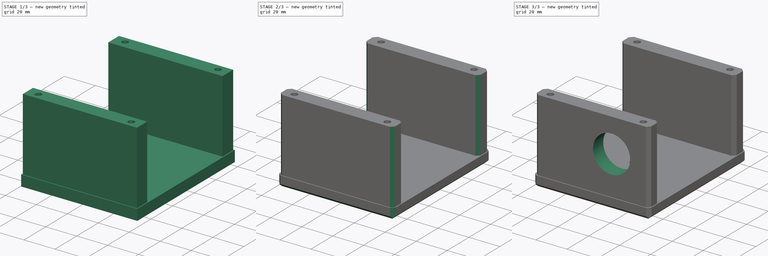
[diagram: build sequence overview — one tinted view per stage of 3, left to right]
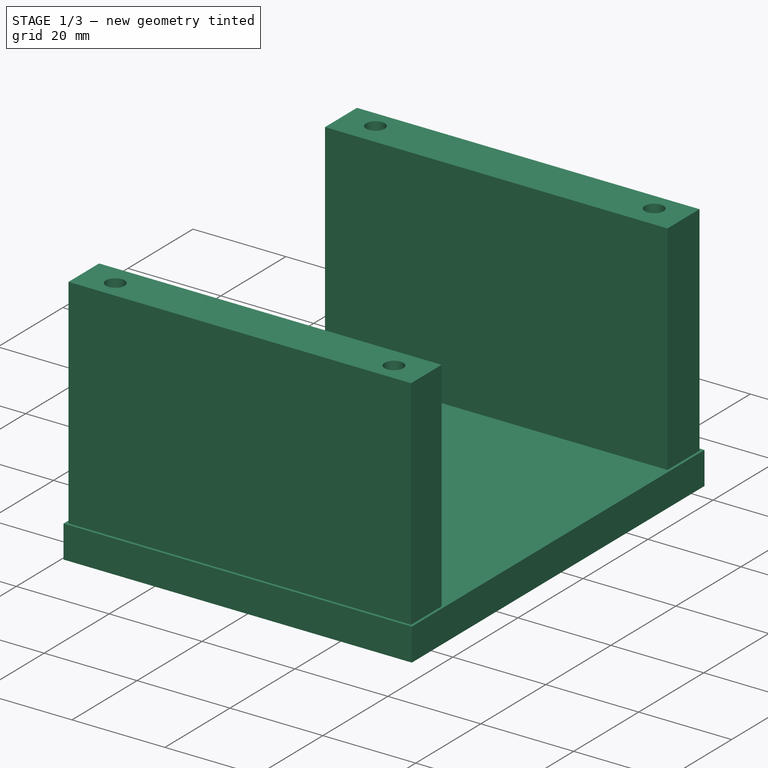
[diagram: stage 1 of 3 — iso view after this stage's code; geometry added in this stage tinted green]
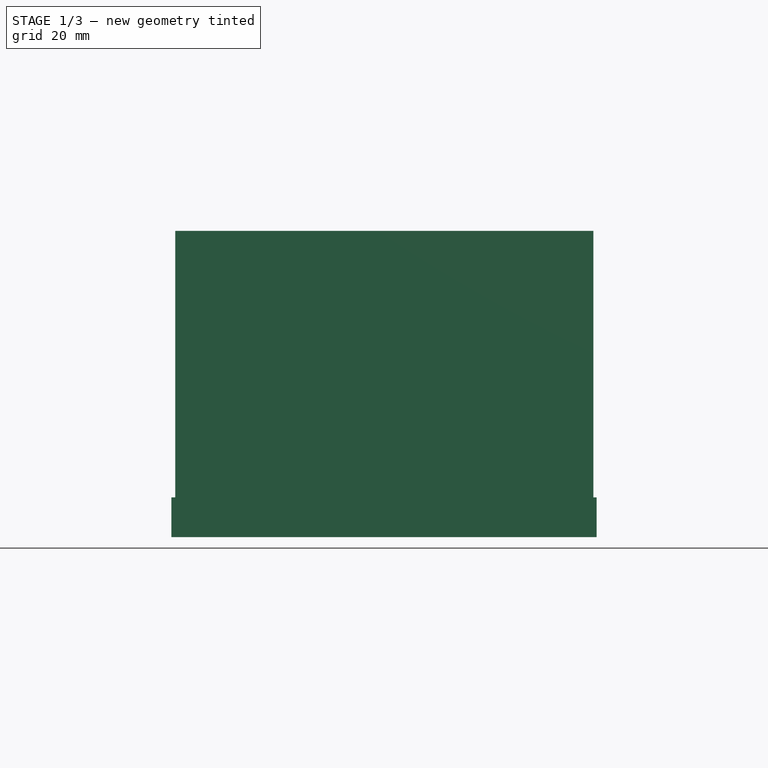
[diagram: stage 1 of 3 — front view after this stage's code; geometry added in this stage tinted green]
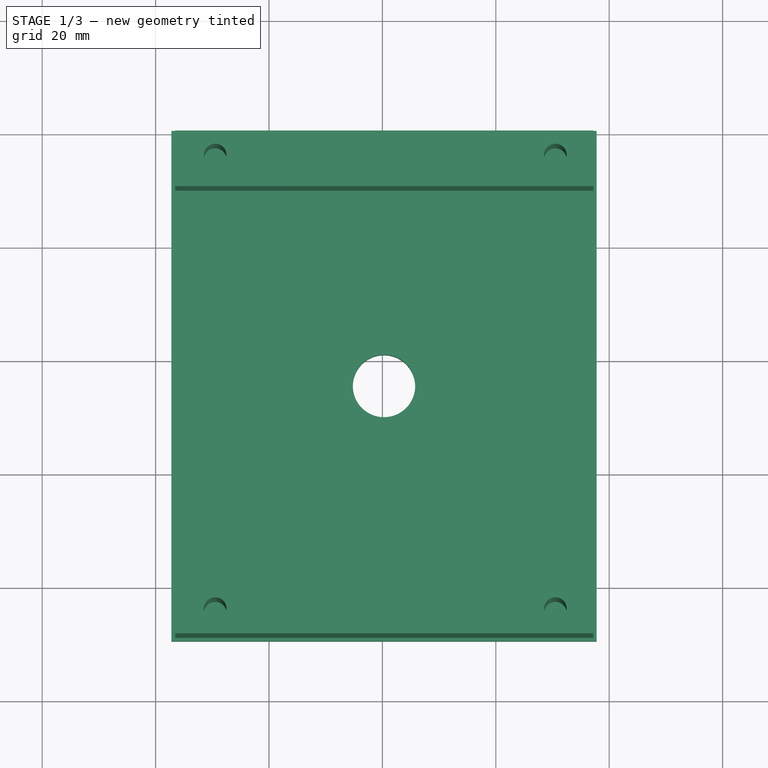
[diagram: stage 1 of 3 — top view after this stage's code; geometry added in this stage tinted green]
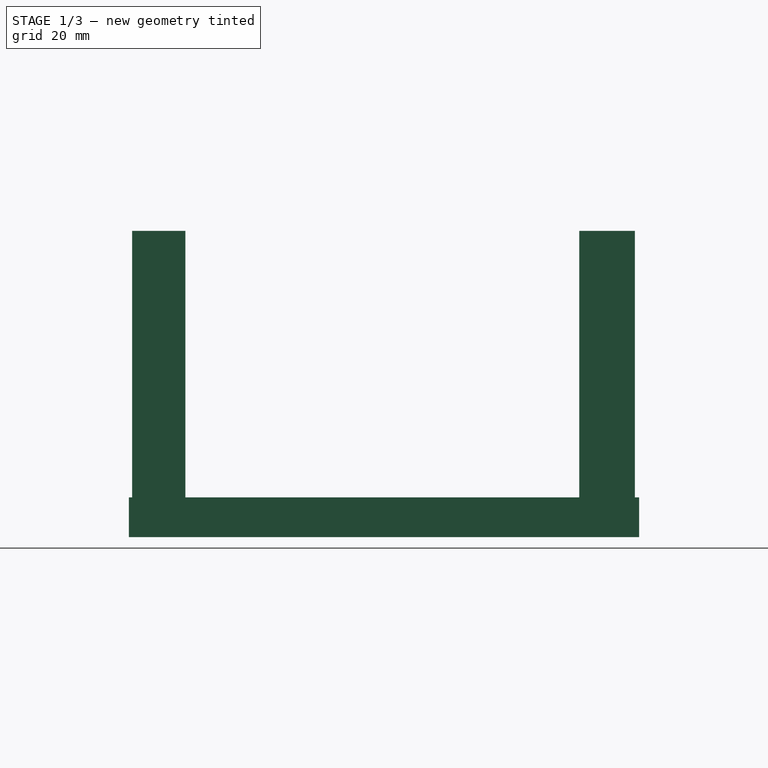
[diagram: stage 1 of 3 — right view after this stage's code; geometry added in this stage tinted green]
FCSTD DOCUMENT  (FreeCAD 0.16R6703 (Git))
Label: CameraPlatform
License: All rights reserved
LicenseURL: http://en.wikipedia.org/wiki/All_rights_reserved
objects: Sketcher::SketchObject×3, PartDesign::Pad×2, PartDesign::Chamfer×2, PartDesign::Pocket×2, Part::Part2DObjectPython×1
note: 14 computed .brp shape members not serialized (recipe doc carries the construction recipe); baked Part::Feature solids carry a one-line shape summary decoded from their .brp

FEATURE [Sketcher::SketchObject] Sketch
  sketch-geometry (7):
    g0: LineSegment StartX=-37.2199 StartY=40.5409 StartZ=0 EndX=37.7801 EndY=40.5409 EndZ=0
    g1: LineSegment StartX=37.7801 StartY=40.5409 StartZ=0 EndX=37.7801 EndY=-49.4591 EndZ=0
    g2: LineSegment StartX=37.7801 StartY=-49.4591 StartZ=0 EndX=-37.2199 EndY=-49.4591 EndZ=0
    g3: LineSegment StartX=-37.2199 StartY=-49.4591 StartZ=0 EndX=-37.2199 EndY=40.5409 EndZ=0
    g4: LineSegment [constr] StartX=-37.2199 StartY=-4.45905 StartZ=0 EndX=0.280064 EndY=-4.45905 EndZ=0
    g5: LineSegment [constr] StartX=0.280064 StartY=40.5409 StartZ=0 EndX=0.280064 EndY=-4.45905 EndZ=0
    g6: Circle CenterX=0.280064 CenterY=-4.45905 CenterZ=0 NormalX=0 NormalY=0 NormalZ=1 Radius=5.5
  constraints (19):
    c: Coincident(g0,g1)
    c: Coincident(g1,g2)
    c: Coincident(g2,g3)
    c: Coincident(g3,g0)
    c: Horizontal(g0)
    c: Horizontal(g2)
    c: Vertical(g1)
    c: Vertical(g3)
    c: DistanceX(g2,g2) = 75
    c: DistanceY(g1,g1) = 90
    c: PointOnObject(g4,g3)
    c: Horizontal(g4)
    c: PointOnObject(g5,g0)
    c: Coincident(g5,g4)
    c: Vertical(g5)
    c: Symmetric(g1,g2,g5)
    c: Symmetric(g0,g1,g4)
    c: Coincident(g6,g4)
    c: Radius(g6) = 5.5
FEATURE [PartDesign::Pad] Pad
  Length = 7
  Length2 = 100
  Sketch = -> Sketch
  Type = 0
FEATURE [Sketcher::SketchObject] Sketch001
  Placement = pos=(0,0,7) rot=(0,0,1;0rad)
  Support = -> Pad [Face7]
  sketch-geometry (22):
    g0: LineSegment [constr] StartX=-29.49 StartY=35.4493 StartZ=0 EndX=30.51 EndY=35.4493 EndZ=0
    g1: LineSegment [constr] StartX=30.51 StartY=35.4493 StartZ=0 EndX=30.51 EndY=-44.5507 EndZ=0
    g2: LineSegment [constr] StartX=30.51 StartY=-44.5507 StartZ=0 EndX=-29.49 EndY=-44.5507 EndZ=0
    g3: LineSegment [constr] StartX=-29.49 StartY=-44.5507 StartZ=0 EndX=-29.49 EndY=35.4493 EndZ=0
    g4: LineSegment StartX=-36.5258 StartY=39.788 StartZ=0 EndX=37.2146 EndY=39.788 EndZ=0
    g5: LineSegment StartX=37.2146 StartY=-48.8894 StartZ=0 EndX=-36.5258 EndY=-48.8894 EndZ=0
    g6: LineSegment [constr] StartX=-7.5151 StartY=39.788 StartZ=0 EndX=-7.5151 EndY=35.4493 EndZ=0
    g7: LineSegment [constr] StartX=3.29931 StartY=-44.5507 StartZ=0 EndX=3.29931 EndY=-48.8894 EndZ=0
    g8: LineSegment [constr] StartX=30.51 StartY=10 StartZ=0 EndX=37.5457 EndY=10 EndZ=0
    g9: LineSegment StartX=-36.5258 StartY=-39.5001 StartZ=0 EndX=37.2146 EndY=-39.5001 EndZ=0
    g10: LineSegment StartX=37.2146 StartY=39.788 StartZ=0 EndX=37.2146 EndY=29.9687 EndZ=0
    g11: LineSegment [constr] StartX=37.2146 StartY=29.9687 StartZ=0 EndX=37.2146 EndY=-39.5001 EndZ=0
    g12: LineSegment StartX=37.2146 StartY=-39.5001 StartZ=0 EndX=37.2146 EndY=-48.8894 EndZ=0
    g13: LineSegment StartX=-36.5258 StartY=39.788 StartZ=0 EndX=-36.5258 EndY=29.9687 EndZ=0
    g14: LineSegment [constr] StartX=-36.5258 StartY=29.9687 StartZ=0 EndX=-36.5258 EndY=-39.5001 EndZ=0
    g15: LineSegment StartX=-36.5258 StartY=-39.5001 StartZ=0 EndX=-36.5258 EndY=-48.8894 EndZ=0
    g16: LineSegment StartX=-36.5258 StartY=29.9687 StartZ=0 EndX=37.2146 EndY=29.9687 EndZ=0
    g17: Circle CenterX=-29.49 CenterY=35.4493 CenterZ=0 NormalX=0 NormalY=0 NormalZ=1 Radius=2
    g18: Circle CenterX=30.51 CenterY=35.4493 CenterZ=0 NormalX=0 NormalY=0 NormalZ=1 Radius=2
    g19: Circle CenterX=-29.49 CenterY=-44.5507 CenterZ=0 NormalX=0 NormalY=0 NormalZ=1 Radius=2
    g20: Circle CenterX=30.51 CenterY=-44.5507 CenterZ=0 NormalX=0 NormalY=0 NormalZ=1 Radius=2
    g21: LineSegment [constr] StartX=-36.5258 StartY=10.3446 StartZ=0 EndX=-29.49 EndY=10.3446 EndZ=0
  constraints (53):
    c: Coincident(g0,g1)
    c: Coincident(g1,g2)
    c: Coincident(g2,g3)
    c: Coincident(g3,g0)
    c: Horizontal(g0)
    c: Horizontal(g2)
    c: Vertical(g1)
    c: Vertical(g3)
    c: DistanceX(g0,g0) = 60
    c: DistanceY(g1,g1) = 80
    c: Horizontal(g4)
    c: Horizontal(g5)
    c: PointOnObject(g6,g4)
    c: PointOnObject(g6,g0)
    c: Vertical(g6)
    c: PointOnObject(g7,g2)
    c: PointOnObject(g7,g5)
    c: Vertical(g7)
    c: Equal(g6,g7)
    c: PointOnObject(g8,g1)
    c: Horizontal(g8)
    c: Horizontal(g9)
    c: Coincident(g10,g4)
    c: Vertical(g10)
    c: Coincident(g11,g10)
    c: Coincident(g11,g9)
    c: Vertical(g11)
    c: Coincident(g12,g9)
    c: Coincident(g12,g5)
    c: Vertical(g12)
    c: Coincident(g13,g4)
    c: Vertical(g13)
    c: Coincident(g14,g13)
    c: Coincident(g14,g9)
    c: Vertical(g14)
    c: Coincident(g15,g9)
    c: Coincident(g15,g5)
    c: Vertical(g15)
    c: Coincident(g16,g13)
    c: Coincident(g16,g10)
    c: Horizontal(g16)
    c: Coincident(g17,g0)
    c: Coincident(g18,g0)
    c: Coincident(g19,g2)
    c: Coincident(g20,g1)
    c: Equal(g19,g20)
    c: Equal(g20,g18)
    c: Equal(g18,g17)
    c: Radius(g19) = 2
    c: PointOnObject(g21,g14)
    c: PointOnObject(g21,g3)
    c: Horizontal(g21)
    c: Equal(g8,g21)
FEATURE [PartDesign::Pad] Pad001
  Length = 47
  Length2 = 100
  Sketch = -> Sketch001
  Type = 0
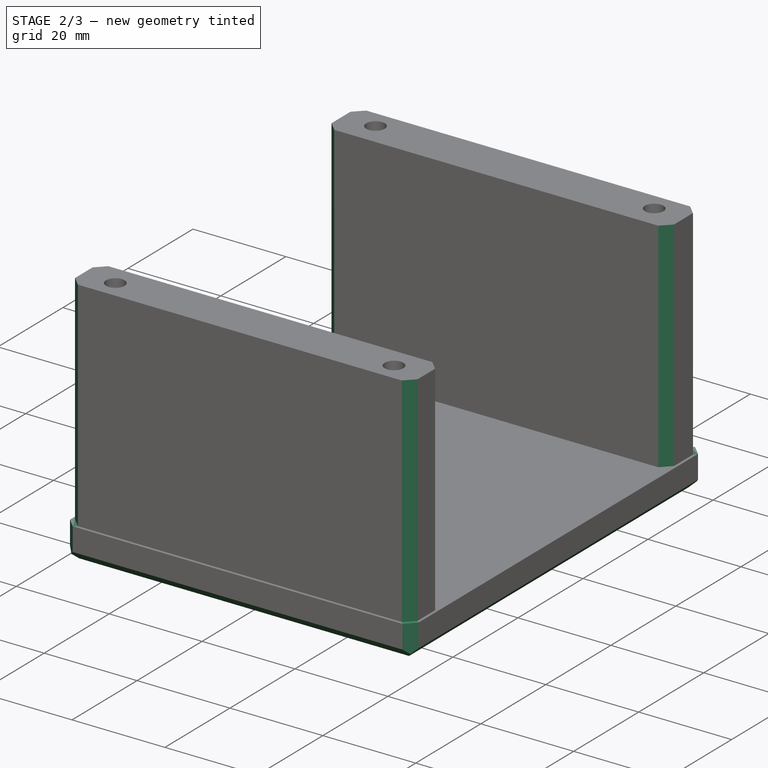
[diagram: stage 2 of 3 — iso view after this stage's code; geometry added in this stage tinted green]
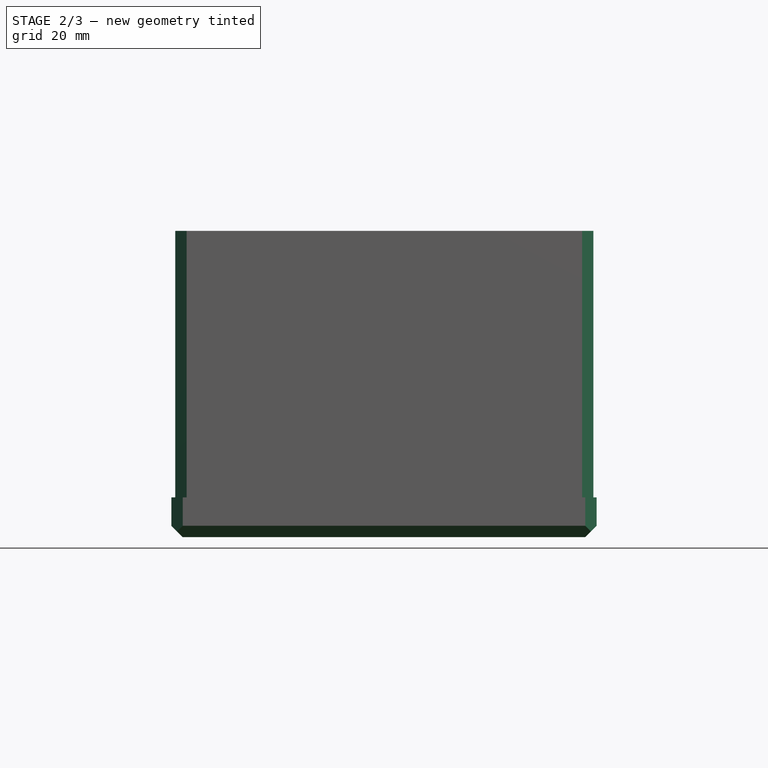
[diagram: stage 2 of 3 — front view after this stage's code; geometry added in this stage tinted green]
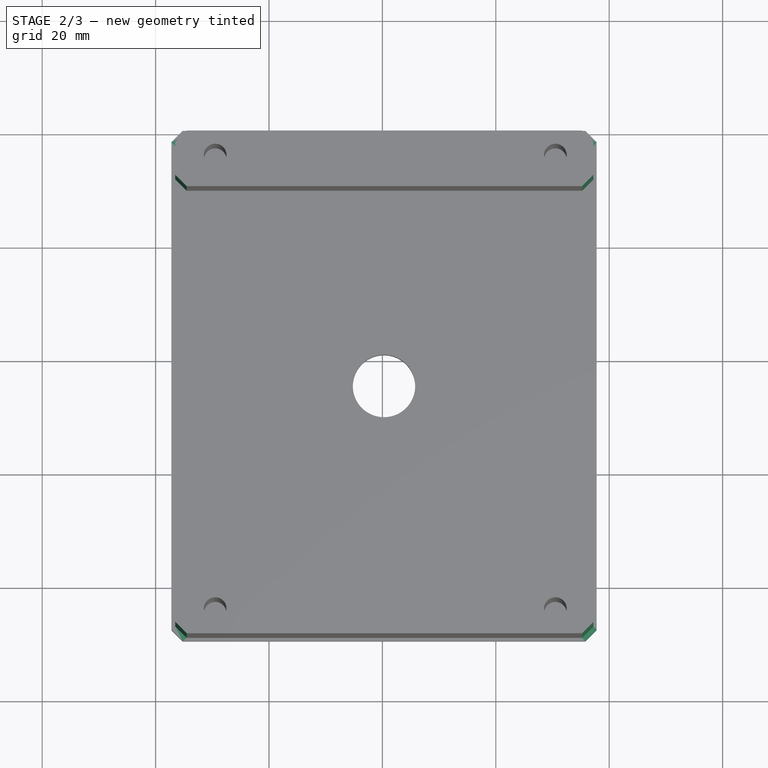
[diagram: stage 2 of 3 — top view after this stage's code; geometry added in this stage tinted green]
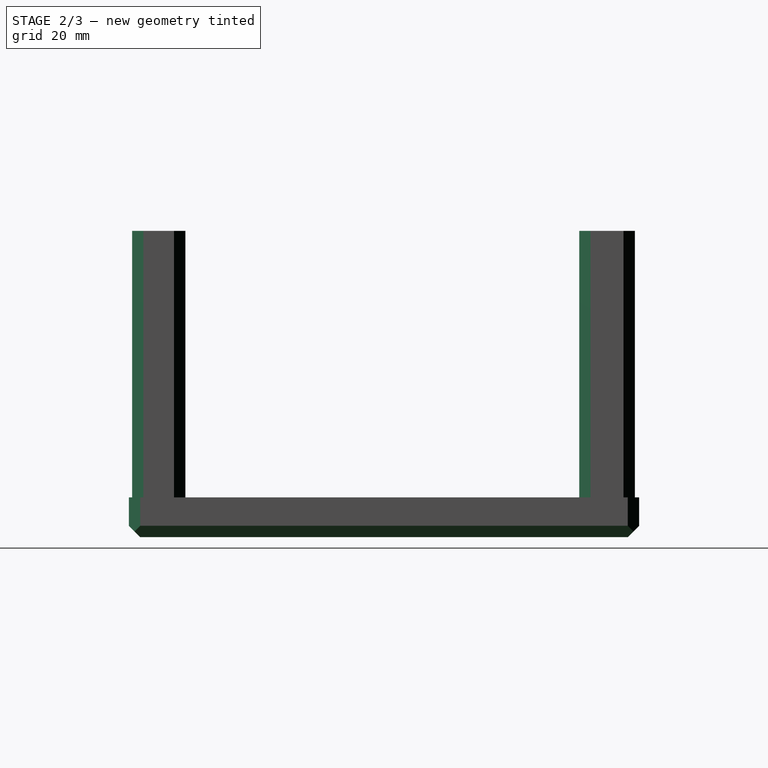
[diagram: stage 2 of 3 — right view after this stage's code; geometry added in this stage tinted green]
FEATURE [PartDesign::Chamfer] Chamfer
  Base = -> Pad001 [Edge9,Edge3,Edge6,Edge11]
  Size = 2
FEATURE [PartDesign::Chamfer] Chamfer001
  Base = -> Chamfer [Edge40,Edge44,Edge42,Edge31,Edge33,Edge36,Edge1,Edge4,Edge5,Edge35,Edge45,Edge23]
  Size = 2
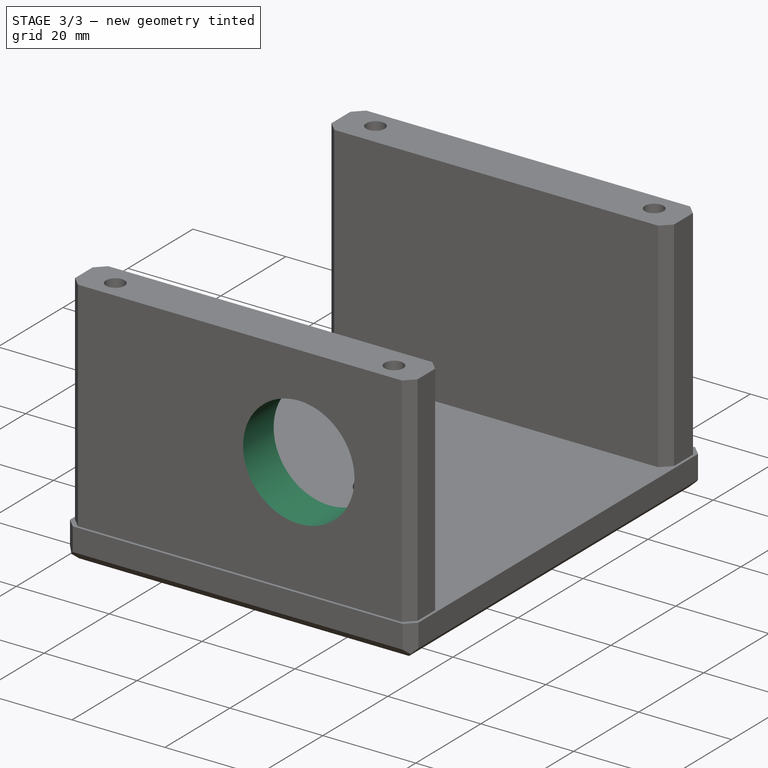
[diagram: stage 3 of 3 — iso view after this stage's code; geometry added in this stage tinted green]
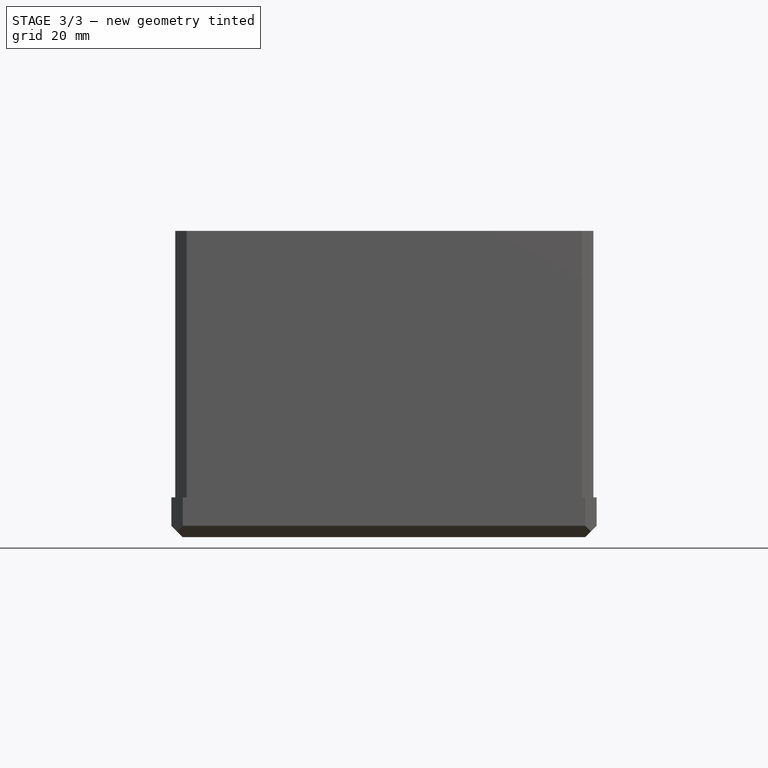
[diagram: stage 3 of 3 — front view after this stage's code; geometry added in this stage tinted green]
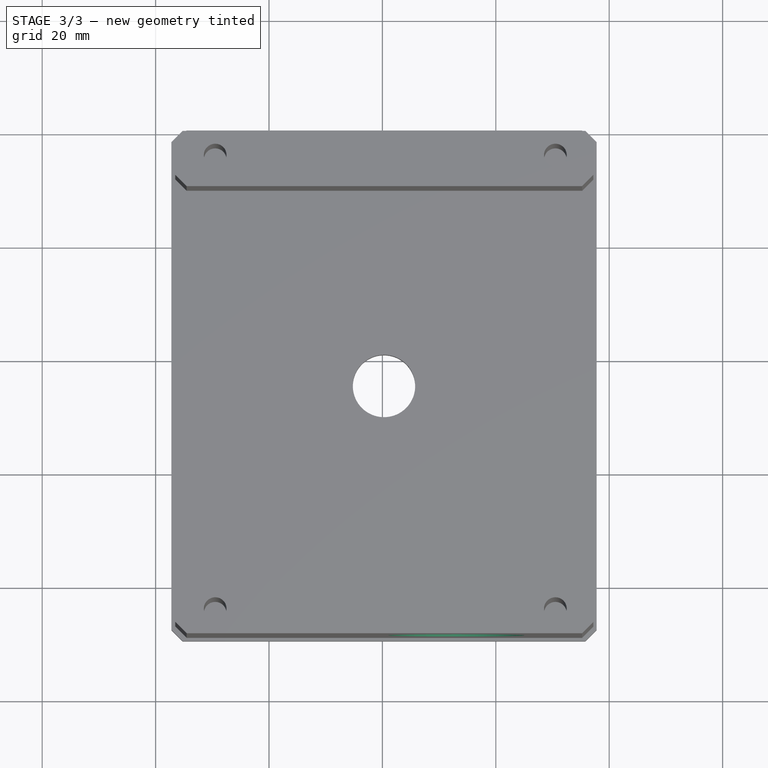
[diagram: stage 3 of 3 — top view after this stage's code; geometry added in this stage tinted green]
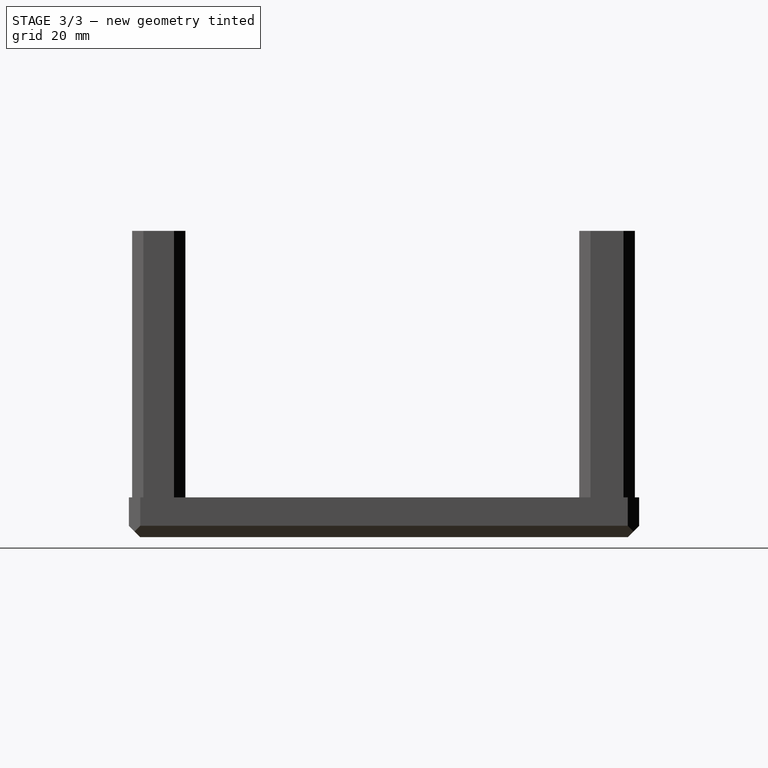
[diagram: stage 3 of 3 — right view after this stage's code; geometry added in this stage tinted green]
FEATURE [Sketcher::SketchObject] Sketch002
  Placement = pos=(0,-48.8894,0) rot=(1,0,0;1.5708rad)
  Support = -> Chamfer001 [Face30]
  sketch-geometry (1):
    g0: Circle CenterX=13.0463 CenterY=32.1687 CenterZ=0 NormalX=0 NormalY=0 NormalZ=1 Radius=11.9872
FEATURE [PartDesign::Pocket] Pocket
  Length = 5
  Sketch = -> Sketch002
  Type = 2
FEATURE [Part::Part2DObjectPython] ShapeString  # Draft 2D object (typed FeaturePython)
  FontFile = C:/AdobeGothicStd-Bold.otf
  Placement = pos=(33,-43,-1) rot=(0,1,0;3.14159rad)
  Size = 7
  String = OPEN SLIDER
  Support = -> Pocket
  Tracking = 0
FEATURE [PartDesign::Pocket] Pocket001
  Length = 2
  Sketch = -> ShapeString
  Type = 0
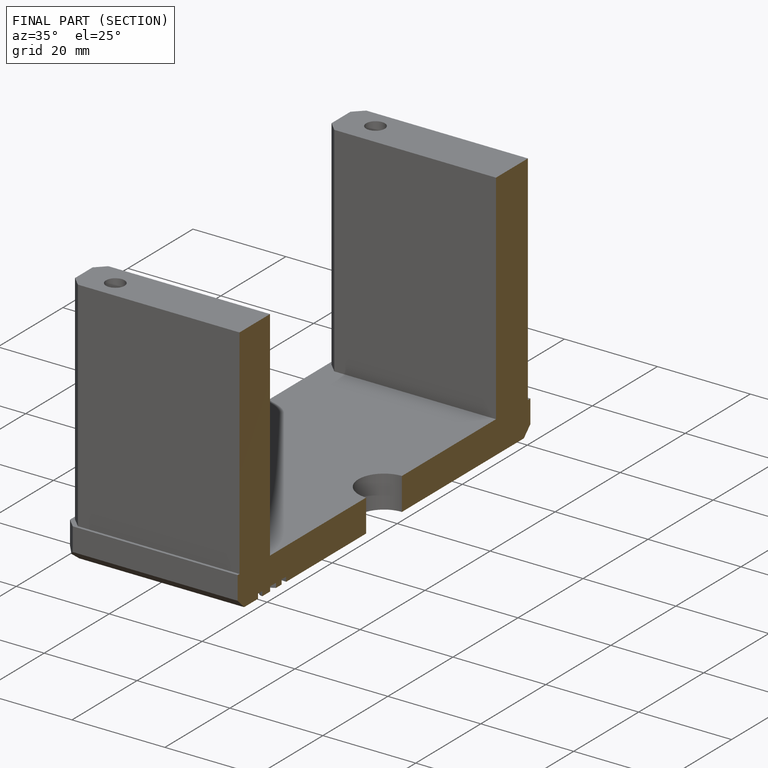
[diagram: finished part — half-section view (interior)]
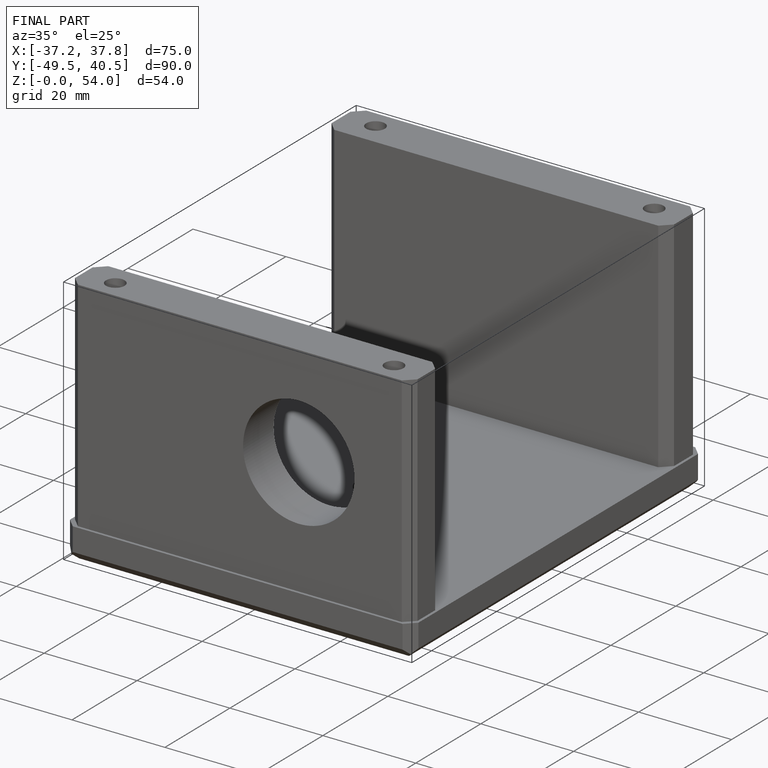
[diagram: finished part — iso view with bounding-box wireframe]
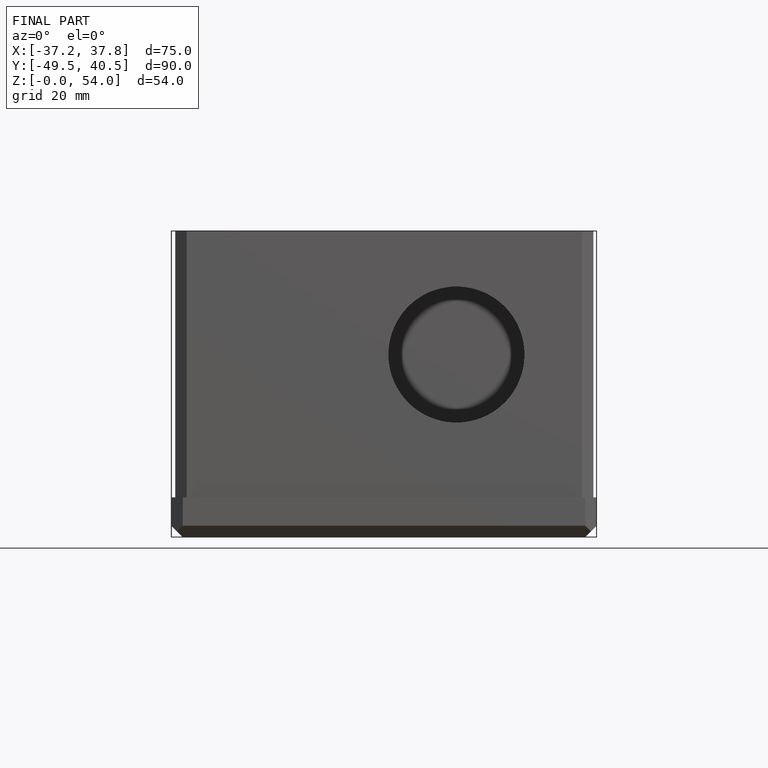
[diagram: finished part — front view with bounding-box wireframe]
